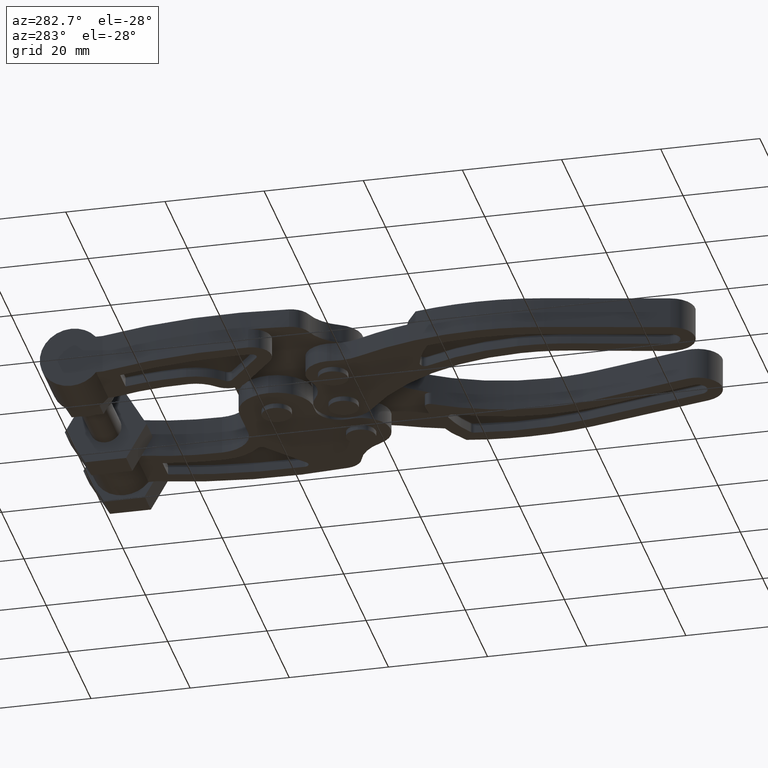
[diagram: clean part render]
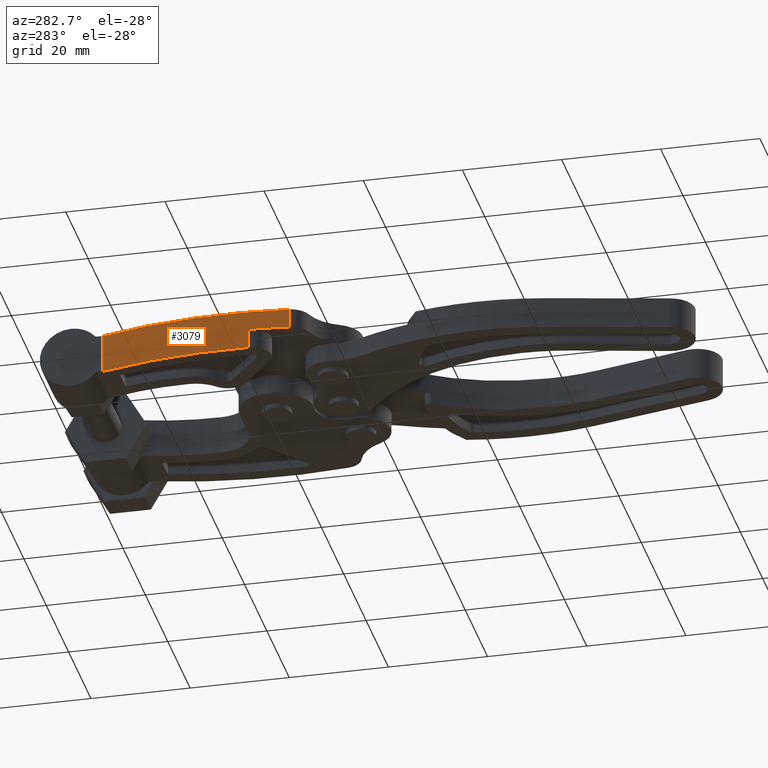
[diagram: same view with one face highlighted and labeled with its STEP entity id]
A machine part, auxiliary view. The second image highlights one B-rep face of the part: STEP entity #3079.
In plain terms, the highlighted cylindrical surface (partial cylindrical patch) has radius 95.0124 mm, axis along (-0, 0, 1).
Its self-contained STEP definition (entity closure, byte-faithful):
#192 = ORIENTED_EDGE ( 'NONE', *, *, #5034, .T. ) ;
#379 = AXIS2_PLACEMENT_3D ( 'NONE', #7682, #3658, #8360 ) ;
#448 = VERTEX_POINT ( 'NONE', #1585 ) ;
#547 = FACE_OUTER_BOUND ( 'NONE', #8165, .T. ) ;
#696 = VERTEX_POINT ( 'NONE', #2777 ) ;
#749 = ORIENTED_EDGE ( 'NONE', *, *, #7180, .F. ) ;
#866 = VERTEX_POINT ( 'NONE', #8533 ) ;
#1091 = CARTESIAN_POINT ( 'NONE',  ( 67.70000000000000300, 3.799999999999999400, -4.000000000000000000 ) ) ;
#1268 = DIRECTION ( 'NONE',  ( 6.940378706500224900E-018, -2.168418717033176300E-019, -1.000000000000000000 ) ) ;
#1332 = ORIENTED_EDGE ( 'NONE', *, *, #5426, .T. ) ;
#1385 = CARTESIAN_POINT ( 'NONE',  ( 67.70000000000000300, 3.799999999999999400, 3.899999999999999900 ) ) ;
#1560 = AXIS2_PLACEMENT_3D ( 'NONE', #6424, #3170, #5780 ) ;
#1585 = CARTESIAN_POINT ( 'NONE',  ( -26.51833205439571400, -8.458401400167606000, 1.639855785884325500E-015 ) ) ;
#1753 = DIRECTION ( 'NONE',  ( -1.000000000000000000, -2.556100059265314600E-016, -9.128928783090408700E-018 ) ) ;
#1809 = LINE ( 'NONE', #3138, #4716 ) ;
#1915 = CARTESIAN_POINT ( 'NONE',  ( -27.22066327602937400, -0.3749470941136461800, 48.31637601524255400 ) ) ;
#2256 = CARTESIAN_POINT ( 'NONE',  ( -23.70000000000001400, 29.74999999999997900, -4.000000000000000900 ) ) ;
#2406 = EDGE_CURVE ( 'NONE', #696, #866, #2859, .T. ) ;
#2614 = CIRCLE ( 'NONE', #379, 95.01243339689810300 ) ;
#2726 = VECTOR ( 'NONE', #1268, 1000.000000000000000 ) ;
#2777 = CARTESIAN_POINT ( 'NONE',  ( -26.51833205439570300, -8.458401400167604200, 3.899999999999999000 ) ) ;
#2859 = CIRCLE ( 'NONE', #5815, 95.01243339689810300 ) ;
#2966 = VECTOR ( 'NONE', #7745, 1000.000000000000000 ) ;
#3079 = ADVANCED_FACE ( 'NONE', ( #547 ), #3663, .T. ) ;
#3138 = CARTESIAN_POINT ( 'NONE',  ( -26.51833205439570300, -8.458401400167604200, -4.000000000000000900 ) ) ;
#3170 = DIRECTION ( 'NONE',  ( -6.940378706500224900E-018, 2.168418717033176300E-019, 1.000000000000000000 ) ) ;
#3658 = DIRECTION ( 'NONE',  ( -6.940378706500224900E-018, 2.168418717033176300E-019, 1.000000000000000000 ) ) ;
#3663 = CYLINDRICAL_SURFACE ( 'NONE', #1560, 95.01243339689811800 ) ;
#3740 = CIRCLE ( 'NONE', #3937, 95.01243339689810300 ) ;
#3937 = AXIS2_PLACEMENT_3D ( 'NONE', #1091, #5756, #1753 ) ;
#4379 = ORIENTED_EDGE ( 'NONE', *, *, #5486, .F. ) ;
#4492 = LINE ( 'NONE', #1915, #2726 ) ;
#4620 = VERTEX_POINT ( 'NONE', #8659 ) ;
#4716 = VECTOR ( 'NONE', #6474, 1000.000000000000000 ) ;
#4792 = ORIENTED_EDGE ( 'NONE', *, *, #2406, .T. ) ;
#4816 = DIRECTION ( 'NONE',  ( -1.000000000000000000, -2.556100059265314600E-016, -9.128928783090408700E-018 ) ) ;
#5034 = EDGE_CURVE ( 'NONE', #448, #696, #1809, .T. ) ;
#5109 = CARTESIAN_POINT ( 'NONE',  ( -23.70000000000001400, 29.74999999999997900, -4.000000000000000900 ) ) ;
#5426 = EDGE_CURVE ( 'NONE', #4620, #448, #2614, .T. ) ;
#5486 = EDGE_CURVE ( 'NONE', #5982, #7623, #3740, .T. ) ;
#5756 = DIRECTION ( 'NONE',  ( 6.940378706500224900E-018, -2.168418717033176300E-019, -1.000000000000000000 ) ) ;
#5780 = DIRECTION ( 'NONE',  ( 1.000000000000000000, 2.556100059265314100E-016, 9.128928783090407200E-018 ) ) ;
#5815 = AXIS2_PLACEMENT_3D ( 'NONE', #1385, #6735, #4816 ) ;
#5982 = VERTEX_POINT ( 'NONE', #6276 ) ;
#6276 = CARTESIAN_POINT ( 'NONE',  ( -27.22066327602937400, -0.3749470941136461800, -4.000000000000001800 ) ) ;
#6424 = CARTESIAN_POINT ( 'NONE',  ( 67.70000000000000300, 3.799999999999999400, -4.000000000000000000 ) ) ;
#6474 = DIRECTION ( 'NONE',  ( -6.940378706500224900E-018, 2.168418717033176300E-019, 1.000000000000000000 ) ) ;
#6529 = LINE ( 'NONE', #5109, #2966 ) ;
#6735 = DIRECTION ( 'NONE',  ( 6.940378706500224900E-018, -2.168418717033176300E-019, -1.000000000000000000 ) ) ;
#7017 = ORIENTED_EDGE ( 'NONE', *, *, #8461, .F. ) ;
#7180 = EDGE_CURVE ( 'NONE', #7623, #866, #6529, .T. ) ;
#7623 = VERTEX_POINT ( 'NONE', #2256 ) ;
#7682 = CARTESIAN_POINT ( 'NONE',  ( 67.70000000000000300, 3.799999999999999400, 2.290377089375628100E-015 ) ) ;
#7745 = DIRECTION ( 'NONE',  ( -6.940378706500224900E-018, 2.168418717033176300E-019, 1.000000000000000000 ) ) ;
#8165 = EDGE_LOOP ( 'NONE', ( #7017, #1332, #192, #4792, #749, #4379 ) ) ;
#8360 = DIRECTION ( 'NONE',  ( -1.000000000000000000, -2.556100059265314600E-016, -6.940378706500224900E-018 ) ) ;
#8461 = EDGE_CURVE ( 'NONE', #4620, #5982, #4492, .T. ) ;
#8533 = CARTESIAN_POINT ( 'NONE',  ( -23.70000000000001400, 29.74999999999997900, 3.899999999999999000 ) ) ;
#8659 = CARTESIAN_POINT ( 'NONE',  ( -27.22066327602939900, -0.3749470941136461800, 1.626303258728256700E-015 ) ) ;